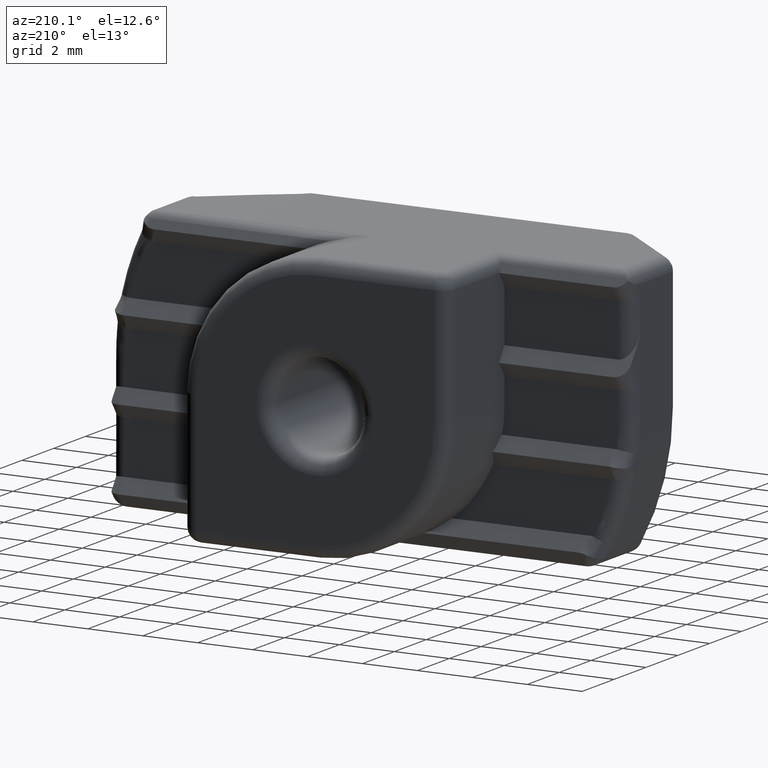
[diagram: clean part render]
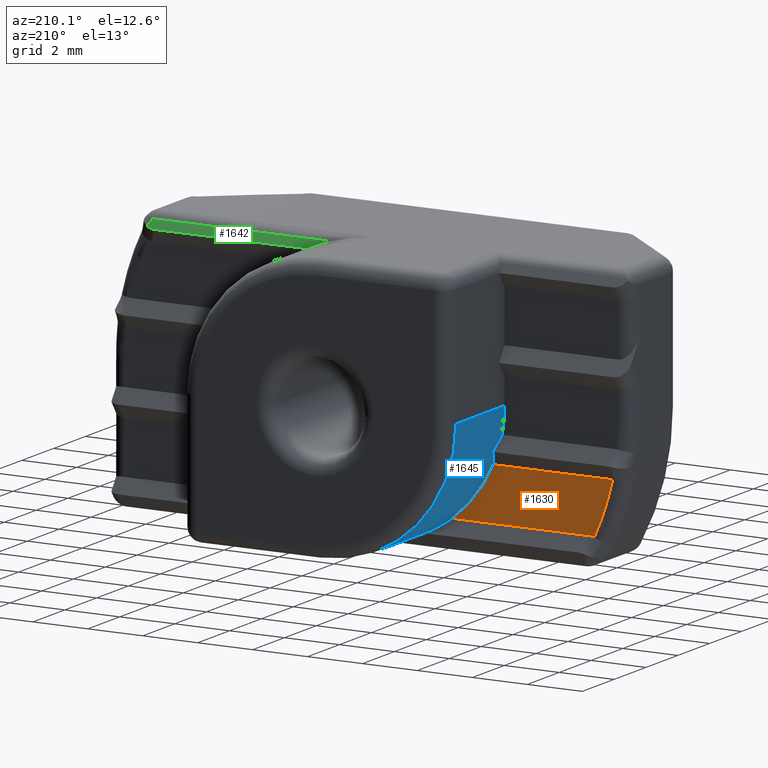
[diagram: same view with three faces highlighted in distinct colors, each labeled with its STEP entity id]
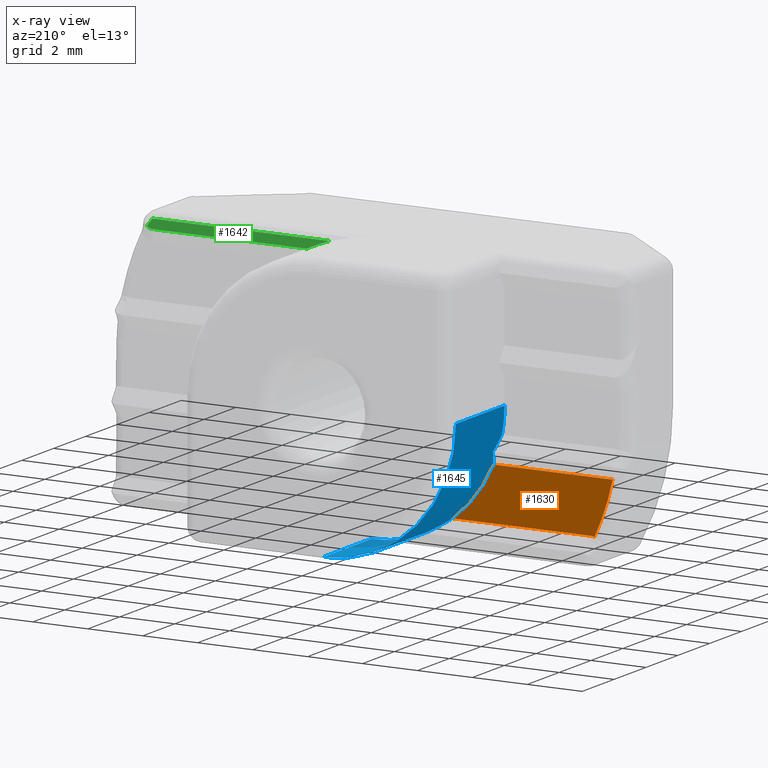
[diagram: x-ray of the same camera — body ghosted, the three highlighted faces saturated]
A machine part, auxiliary view with three faces highlighted in distinct colors.
The next image is the same camera in x-ray (body ghosted, the three faces saturated) — at least one of them is partly hidden behind the body in this view.
Their STEP definitions:

[orange] entity #1630 — the highlighted planar face has unit normal (0, -1, 0).
#53=B_SPLINE_CURVE_WITH_KNOTS('',3,(#3130,#3131,#3132,#3133,#3134,#3135,
#3136),.UNSPECIFIED.,.F.,.F.,(4,3,4),(-0.0133804343368651,-0.0116115173627564,
0.),.UNSPECIFIED.);
#133=CIRCLE('',#1797,9.);
#142=CIRCLE('',#1831,4.85);
#175=PLANE('',#1830);
#275=FACE_OUTER_BOUND('',#384,.T.);
#384=EDGE_LOOP('',(#1397,#1398,#1399,#1400,#1401));
#489=LINE('',#3249,#590);
#490=LINE('',#3253,#591);
#590=VECTOR('',#2304,5.04338661473057);
#591=VECTOR('',#2309,4.34549012512958);
#754=VERTEX_POINT('',#3095);
#757=VERTEX_POINT('',#3107);
#758=VERTEX_POINT('',#3138);
#775=VERTEX_POINT('',#3248);
#776=VERTEX_POINT('',#3252);
#964=EDGE_CURVE('',#757,#754,#53,.T.);
#965=EDGE_CURVE('',#758,#757,#133,.T.);
#1002=EDGE_CURVE('',#754,#775,#489,.T.);
#1004=EDGE_CURVE('',#758,#776,#490,.T.);
#1005=EDGE_CURVE('',#775,#776,#142,.T.);
#1397=ORIENTED_EDGE('',*,*,#965,.F.);
#1398=ORIENTED_EDGE('',*,*,#1004,.T.);
#1399=ORIENTED_EDGE('',*,*,#1005,.F.);
#1400=ORIENTED_EDGE('',*,*,#1002,.F.);
#1401=ORIENTED_EDGE('',*,*,#964,.F.);
#1630=ADVANCED_FACE('',(#275),#175,.F.);
#1797=AXIS2_PLACEMENT_3D('',#3139,#2219,#2220);
#1830=AXIS2_PLACEMENT_3D('',#3251,#2307,#2308);
#1831=AXIS2_PLACEMENT_3D('',#3254,#2310,#2311);
#2219=DIRECTION('center_axis',(0.,-1.,2.92163953848725E-16));
#2220=DIRECTION('ref_axis',(-0.951721663290688,-8.96833297211112E-17,-0.30696233583814));
#2304=DIRECTION('',(1.,0.,0.));
#2307=DIRECTION('center_axis',(0.,-1.,2.92163953848725E-16));
#2308=DIRECTION('ref_axis',(0.,-2.94209101525666E-16,-1.));
#2309=DIRECTION('',(1.,0.,0.));
#2310=DIRECTION('center_axis',(0.,1.,-2.92163953848725E-16));
#2311=DIRECTION('ref_axis',(0.,0.,1.));
#3095=CARTESIAN_POINT('',(-7.9929628554811,-0.350000000000007,-3.85));
#3107=CARTESIAN_POINT('',(-8.121146472916,-0.350379444609954,-3.87896172876603));
#3130=CARTESIAN_POINT('Ctrl Pts',(-8.121146472916,-0.350379444609954,-3.87896172876603));
#3131=CARTESIAN_POINT('Ctrl Pts',(-8.11591927087136,-0.350360240120491,
-3.87635702647844));
#3132=CARTESIAN_POINT('Ctrl Pts',(-8.11059006515739,-0.350339662599146,
-3.87391683583112));
#3133=CARTESIAN_POINT('Ctrl Pts',(-8.10515963195146,-0.350318118392967,
-3.87164571626954));
#3134=CARTESIAN_POINT('Ctrl Pts',(-8.06951238681949,-0.350176694758844,
-3.85673730055658));
#3135=CARTESIAN_POINT('Ctrl Pts',(-8.03166828766981,-0.349997671198663,
-3.84999913664033));
#3136=CARTESIAN_POINT('Ctrl Pts',(-7.99296250985036,-0.35000013111002,-3.84999981269998));
#3138=CARTESIAN_POINT('',(-8.78621078736449,-0.350000000000006,-1.95));
#3139=CARTESIAN_POINT('Origin',(0.,-0.350000000000006,-1.46081976924363E-16));
#3248=CARTESIAN_POINT('',(-2.94957624075053,-0.350000000000006,-3.85));
#3249=CARTESIAN_POINT('',(-9.5,-0.350000000000007,-3.85));
#3251=CARTESIAN_POINT('Origin',(-9.5,-0.350000000000006,-1.95));
#3252=CARTESIAN_POINT('',(-4.4407206622349,-0.350000000000006,-1.95));
#3253=CARTESIAN_POINT('',(-9.5,-0.350000000000006,-1.95));
#3254=CARTESIAN_POINT('Origin',(0.,-0.350000000000006,-5.55111512312578E-16));

[blue] entity #1645 — the highlighted cylindrical surface (partial cylindrical patch) has radius 4.85 mm, axis along (0, -1, 0).
#127=CIRCLE('',#1774,4.85);
#142=CIRCLE('',#1831,4.85);
#143=CIRCLE('',#1837,4.85);
#290=FACE_OUTER_BOUND('',#399,.T.);
#399=EDGE_LOOP('',(#1483,#1484,#1485,#1486,#1487,#1488,#1489,#1490,#1491));
#487=LINE('',#3242,#588);
#502=LINE('',#3297,#603);
#588=VECTOR('',#2296,3.05000000000001);
#603=VECTOR('',#2369,3.05000000000001);
#635=ELLIPSE('',#1827,5.92017947363085,4.85);
#636=ELLIPSE('',#1829,5.92017947363085,4.85);
#637=ELLIPSE('',#1833,5.92017947363084,4.85);
#638=ELLIPSE('',#1835,5.92017947363084,4.85);
#739=VERTEX_POINT('',#2842);
#740=VERTEX_POINT('',#2846);
#773=VERTEX_POINT('',#3240);
#774=VERTEX_POINT('',#3244);
#775=VERTEX_POINT('',#3248);
#776=VERTEX_POINT('',#3252);
#777=VERTEX_POINT('',#3256);
#778=VERTEX_POINT('',#3260);
#780=VERTEX_POINT('',#3266);
#930=EDGE_CURVE('',#740,#739,#127,.T.);
#999=EDGE_CURVE('',#773,#740,#487,.T.);
#1001=EDGE_CURVE('',#773,#774,#635,.T.);
#1003=EDGE_CURVE('',#774,#775,#636,.T.);
#1005=EDGE_CURVE('',#775,#776,#142,.T.);
#1007=EDGE_CURVE('',#776,#777,#637,.T.);
#1009=EDGE_CURVE('',#777,#778,#638,.T.);
#1012=EDGE_CURVE('',#778,#780,#143,.T.);
#1025=EDGE_CURVE('',#780,#739,#502,.T.);
#1483=ORIENTED_EDGE('',*,*,#930,.F.);
#1484=ORIENTED_EDGE('',*,*,#999,.F.);
#1485=ORIENTED_EDGE('',*,*,#1001,.T.);
#1486=ORIENTED_EDGE('',*,*,#1003,.T.);
#1487=ORIENTED_EDGE('',*,*,#1005,.T.);
#1488=ORIENTED_EDGE('',*,*,#1007,.T.);
#1489=ORIENTED_EDGE('',*,*,#1009,.T.);
#1490=ORIENTED_EDGE('',*,*,#1012,.T.);
#1491=ORIENTED_EDGE('',*,*,#1025,.T.);
#1543=CYLINDRICAL_SURFACE('',#1854,4.85);
#1645=ADVANCED_FACE('',(#290),#1543,.T.);
#1774=AXIS2_PLACEMENT_3D('',#2848,#2164,#2165);
#1827=AXIS2_PLACEMENT_3D('',#3246,#2300,#2301);
#1829=AXIS2_PLACEMENT_3D('',#3250,#2305,#2306);
#1831=AXIS2_PLACEMENT_3D('',#3254,#2310,#2311);
#1833=AXIS2_PLACEMENT_3D('',#3258,#2315,#2316);
#1835=AXIS2_PLACEMENT_3D('',#3262,#2320,#2321);
#1837=AXIS2_PLACEMENT_3D('',#3268,#2326,#2327);
#1854=AXIS2_PLACEMENT_3D('',#3296,#2367,#2368);
#2164=DIRECTION('center_axis',(0.,1.,0.));
#2165=DIRECTION('ref_axis',(-0.707106781186548,0.,-0.707106781186548));
#2296=DIRECTION('',(0.,1.,0.));
#2300=DIRECTION('center_axis',(0.,0.81923192051904,-0.573462344363328));
#2301=DIRECTION('ref_axis',(0.,0.573462344363328,0.81923192051904));
#2305=DIRECTION('center_axis',(0.,0.81923192051904,0.573462344363329));
#2306=DIRECTION('ref_axis',(0.,-0.573462344363329,0.81923192051904));
#2310=DIRECTION('center_axis',(0.,1.,-2.92163953848725E-16));
#2311=DIRECTION('ref_axis',(0.,0.,1.));
#2315=DIRECTION('center_axis',(0.,0.819231920519041,-0.573462344363328));
#2316=DIRECTION('ref_axis',(0.,0.573462344363328,0.819231920519041));
#2320=DIRECTION('center_axis',(0.,0.819231920519041,0.573462344363328));
#2321=DIRECTION('ref_axis',(0.,-0.573462344363328,0.819231920519041));
#2326=DIRECTION('center_axis',(0.,1.,0.));
#2327=DIRECTION('ref_axis',(0.,0.,1.));
#2367=DIRECTION('center_axis',(0.,-1.,0.));
#2368=DIRECTION('ref_axis',(0.,0.,1.));
#2369=DIRECTION('',(0.,1.,0.));
#2842=CARTESIAN_POINT('',(-4.85,2.7,0.));
#2846=CARTESIAN_POINT('',(0.,2.7,-4.85));
#2848=CARTESIAN_POINT('Origin',(0.,2.7,-5.55111512312578E-16));
#3240=CARTESIAN_POINT('',(0.,-0.350000000000006,-4.85));
#3242=CARTESIAN_POINT('',(0.,27.4256756099546,-4.85));
#3244=CARTESIAN_POINT('',(-2.14476105895272,-8.88178419700125E-15,-4.35));
#3246=CARTESIAN_POINT('Origin',(0.,3.04499999999999,-5.55111512312578E-16));
#3248=CARTESIAN_POINT('',(-2.94957624075053,-0.350000000000006,-3.85));
#3250=CARTESIAN_POINT('Origin',(0.,-3.04500000000001,-5.55111512312578E-16));
#3252=CARTESIAN_POINT('',(-4.4407206622349,-0.350000000000006,-1.95));
#3254=CARTESIAN_POINT('Origin',(0.,-0.350000000000006,-5.55111512312578E-16));
#3256=CARTESIAN_POINT('',(-4.62817458616245,-8.88178419700125E-15,-1.45));
#3258=CARTESIAN_POINT('Origin',(0.,1.015,-5.55111512312578E-16));
#3260=CARTESIAN_POINT('',(-4.75604878023765,-0.350000000000006,-0.95));
#3262=CARTESIAN_POINT('Origin',(0.,-1.015,-5.55111512312578E-16));
#3266=CARTESIAN_POINT('',(-4.85,-0.350000000000006,0.));
#3268=CARTESIAN_POINT('Origin',(0.,-0.350000000000006,-5.55111512312578E-16));
#3296=CARTESIAN_POINT('Origin',(0.,3.2,-5.55111512312578E-16));
#3297=CARTESIAN_POINT('',(-4.85,27.4256756099546,0.));

[green] entity #1642 — the highlighted planar face has unit normal (-0, -0.8192, -0.5735).
#43=B_SPLINE_CURVE_WITH_KNOTS('',3,(#2917,#2918,#2919,#2920,#2921,#2922,
#2923),.UNSPECIFIED.,.F.,.F.,(4,3,4),(0.,0.0209103309645977,0.0300202472564543),
 .UNSPECIFIED.);
#185=PLANE('',#1850);
#287=FACE_OUTER_BOUND('',#396,.T.);
#396=EDGE_LOOP('',(#1458,#1459,#1460,#1461,#1462));
#441=LINE('',#2736,#542);
#499=LINE('',#3289,#600);
#542=VECTOR('',#2054,6.45652679162233);
#600=VECTOR('',#2356,5.56891018351794);
#623=ELLIPSE('',#1776,10.9859000541603,9.);
#642=ELLIPSE('',#1851,5.92017947363085,4.85);
#716=VERTEX_POINT('',#2720);
#719=VERTEX_POINT('',#2727);
#741=VERTEX_POINT('',#2871);
#743=VERTEX_POINT('',#2915);
#784=VERTEX_POINT('',#3287);
#884=EDGE_CURVE('',#716,#719,#441,.T.);
#933=EDGE_CURVE('',#741,#716,#623,.T.);
#938=EDGE_CURVE('',#743,#741,#43,.T.);
#1021=EDGE_CURVE('',#743,#784,#499,.T.);
#1022=EDGE_CURVE('',#719,#784,#642,.T.);
#1458=ORIENTED_EDGE('',*,*,#938,.F.);
#1459=ORIENTED_EDGE('',*,*,#1021,.T.);
#1460=ORIENTED_EDGE('',*,*,#1022,.F.);
#1461=ORIENTED_EDGE('',*,*,#884,.F.);
#1462=ORIENTED_EDGE('',*,*,#933,.F.);
#1642=ADVANCED_FACE('',(#287),#185,.F.);
#1776=AXIS2_PLACEMENT_3D('',#2884,#2169,#2170);
#1850=AXIS2_PLACEMENT_3D('',#3290,#2357,#2358);
#1851=AXIS2_PLACEMENT_3D('',#3291,#2359,#2360);
#2054=DIRECTION('',(-1.,3.70719070359735E-16,0.));
#2169=DIRECTION('center_axis',(-3.03704895983839E-16,-0.81923192051904,
-0.573462344363328));
#2170=DIRECTION('ref_axis',(0.,-0.573462344363328,0.81923192051904));
#2356=DIRECTION('',(-1.,1.47704651958136E-16,-3.17670985119404E-16));
#2357=DIRECTION('center_axis',(-3.03704895983839E-16,-0.81923192051904,
-0.573462344363328));
#2358=DIRECTION('ref_axis',(-1.77635683940025E-16,-0.573462344363328,0.81923192051904));
#2359=DIRECTION('center_axis',(3.03704895983839E-16,0.81923192051904,0.573462344363328));
#2360=DIRECTION('ref_axis',(9.37659938833119E-17,0.573462344363328,-0.81923192051904));
#2720=CARTESIAN_POINT('',(7.87892759200134,-0.200711820527171,4.63673117218166));
#2727=CARTESIAN_POINT('',(1.42240080037901,-0.200711820527165,4.63673117218166));
#2736=CARTESIAN_POINT('',(4.75,-0.20071182052717,4.63673117218166));
#2871=CARTESIAN_POINT('',(7.99625907917291,-0.0470301258253697,4.41706222130756));
#2884=CARTESIAN_POINT('Origin',(1.5185244799192E-16,2.84428817947283,0.286731172181664));
#2915=CARTESIAN_POINT('',(7.71367124247066,-1.73419086758764E-15,4.35000000000001));
#2917=CARTESIAN_POINT('Ctrl Pts',(7.71367124247066,-3.62557206479153E-15,
4.35000000000001));
#2918=CARTESIAN_POINT('Ctrl Pts',(7.78337234568599,-6.38817264063355E-15,
4.35));
#2919=CARTESIAN_POINT('Ctrl Pts',(7.85240988830859,-0.00766021829541427,
4.36047405403879));
#2920=CARTESIAN_POINT('Ctrl Pts',(7.9165594797466,-0.0230491687106866,4.38239829430131));
#2921=CARTESIAN_POINT('Ctrl Pts',(7.94451130168254,-0.0297545769938308,
4.39195131632626));
#2922=CARTESIAN_POINT('Ctrl Pts',(7.97116483958955,-0.0378606016909204,
4.40356929551273));
#2923=CARTESIAN_POINT('Ctrl Pts',(7.99614514596304,-0.0473544925089578,
4.41722140995115));
#3287=CARTESIAN_POINT('',(2.14476105895272,-4.44089209850063E-15,4.35));
#3289=CARTESIAN_POINT('',(9.5,-1.2490009027033E-15,4.35000000000001));
#3290=CARTESIAN_POINT('Origin',(9.5,-6.59194920871187E-15,4.35));
#3291=CARTESIAN_POINT('Origin',(5.55111512312578E-16,3.045,0.));